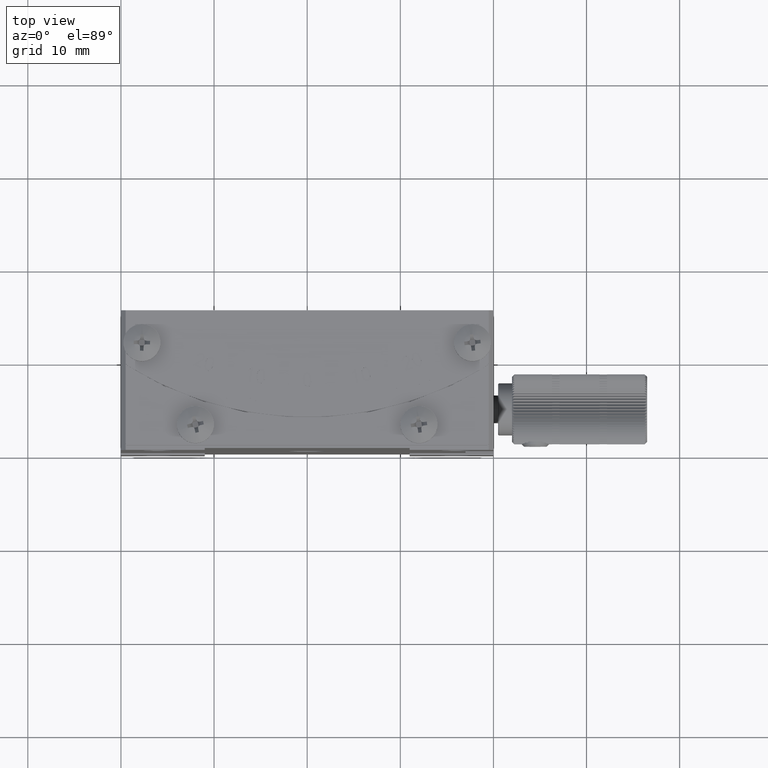
[diagram: clean part render]
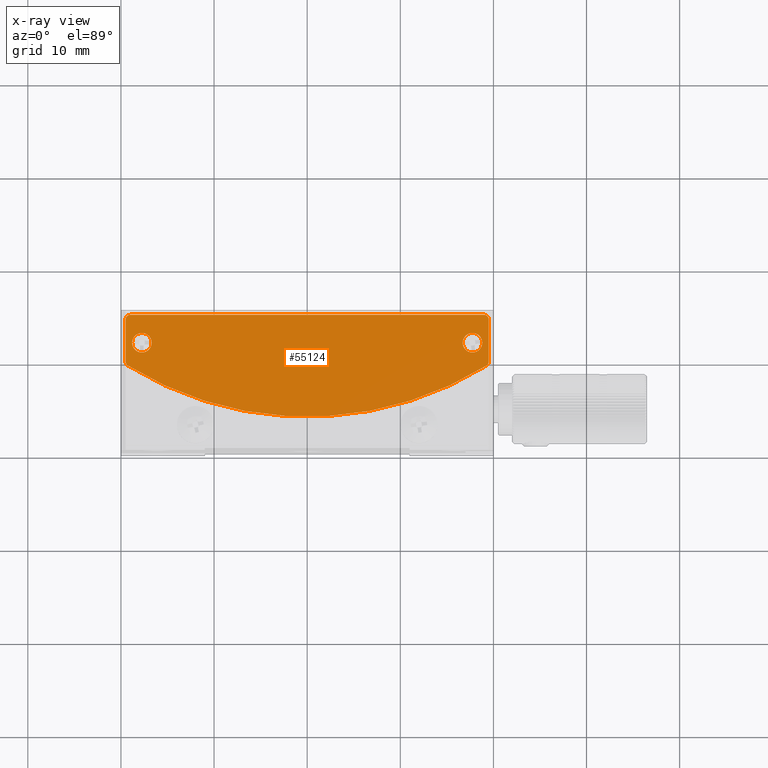
[diagram: x-ray — body ghosted, one internal face saturated and labeled with its STEP entity id]
A machine part, top view, then the same camera in x-ray: the body is ghosted and one INTERNAL B-rep face — a face not visible from any outside direction — is saturated and labeled: STEP entity #55124.
In plain terms, the highlighted planar face has unit normal (0, -0, -1).
Its self-contained STEP definition (entity closure, byte-faithful):
#508 = DIRECTION ( 'NONE',  ( 7.800933276890223951E-31, -1.166664048593739633E-31, -1.000000000000000000 ) ) ;
#827 = FACE_BOUND ( 'NONE', #16114, .T. ) ;
#1281 = AXIS2_PLACEMENT_3D ( 'NONE', #15134, #25095, #59266 ) ;
#1362 = CARTESIAN_POINT ( 'NONE',  ( 1.040834085586084257E-14, -25.49999999999999289, 20.00000000000000000 ) ) ;
#1593 = AXIS2_PLACEMENT_3D ( 'NONE', #32761, #52434, #33077 ) ;
#1659 = DIRECTION ( 'NONE',  ( 1.000000000000000000, 0.000000000000000000, 0.000000000000000000 ) ) ;
#2702 = CARTESIAN_POINT ( 'NONE',  ( -19.00000000000000355, -25.99999999999998934, 20.00000000000000000 ) ) ;
#3348 = EDGE_CURVE ( 'NONE', #45258, #21559, #45495, .T. ) ;
#4058 = EDGE_CURVE ( 'NONE', #10067, #29170, #56903, .T. ) ;
#5767 = CARTESIAN_POINT ( 'NONE',  ( -16.70000000000000995, -28.49999999999998579, 20.00000000000000000 ) ) ;
#6278 = FACE_BOUND ( 'NONE', #48255, .T. ) ;
#6573 = DIRECTION ( 'NONE',  ( 1.000000000000000000, 0.000000000000000000, 0.000000000000000000 ) ) ;
#6630 = DIRECTION ( 'NONE',  ( -9.101068399626377525E-62, -1.000000000000000000, 1.166664048593739633E-31 ) ) ;
#7258 = CARTESIAN_POINT ( 'NONE',  ( 19.50000000000000355, 0.05449724108302911318, 20.00000000000000000 ) ) ;
#7620 = CARTESIAN_POINT ( 'NONE',  ( -19.50000000000000355, -30.52327246175827824, 20.00000000000000000 ) ) ;
#7759 = DIRECTION ( 'NONE',  ( -7.800933276890225703E-31, 1.166664048593739633E-31, 1.000000000000000000 ) ) ;
#8385 = ORIENTED_EDGE ( 'NONE', *, *, #61460, .T. ) ;
#9034 = CIRCLE ( 'NONE', #51232, 0.5000000000000004441 ) ;
#10067 = VERTEX_POINT ( 'NONE', #53243 ) ;
#11588 = VERTEX_POINT ( 'NONE', #5767 ) ;
#11655 = EDGE_CURVE ( 'NONE', #11588, #11588, #25293, .T. ) ;
#11659 = CARTESIAN_POINT ( 'NONE',  ( -17.75000000000000711, -28.49999999999998579, 20.00000000000000000 ) ) ;
#12495 = EDGE_CURVE ( 'NONE', #14743, #58590, #60504, .T. ) ;
#13071 = VERTEX_POINT ( 'NONE', #38985 ) ;
#13923 = EDGE_CURVE ( 'NONE', #58590, #24582, #39114, .T. ) ;
#13997 = DIRECTION ( 'NONE',  ( 7.800933276890225703E-31, -1.166664048593739633E-31, -1.000000000000000000 ) ) ;
#14661 = CARTESIAN_POINT ( 'NONE',  ( -19.50000000000000355, 0.05449724108302911318, 20.00000000000000000 ) ) ;
#14743 = VERTEX_POINT ( 'NONE', #37701 ) ;
#15134 = CARTESIAN_POINT ( 'NONE',  ( 1.040834085586084257E-14, 0.05449724108302911318, 20.00000000000000000 ) ) ;
#16114 = EDGE_LOOP ( 'NONE', ( #63535 ) ) ;
#16748 = CARTESIAN_POINT ( 'NONE',  ( 19.00000000000000355, -25.50000000000000355, 20.00000000000000000 ) ) ;
#16914 = CARTESIAN_POINT ( 'NONE',  ( 19.00000000000000355, -26.00000000000001421, 20.00000000000000000 ) ) ;
#17403 = VECTOR ( 'NONE', #43310, 1000.000000000000000 ) ;
#18471 = CIRCLE ( 'NONE', #62716, 0.5000000000000004441 ) ;
#19120 = AXIS2_PLACEMENT_3D ( 'NONE', #20177, #508, #25956 ) ;
#20177 = CARTESIAN_POINT ( 'NONE',  ( 1.040834085586084257E-14, 0.05449724108302911318, 20.00000000000000000 ) ) ;
#20492 = FACE_OUTER_BOUND ( 'NONE', #20502, .T. ) ;
#20502 = EDGE_LOOP ( 'NONE', ( #34863, #27424, #47683, #55969, #27983, #47655, #49769, #8385 ) ) ;
#20812 = PLANE ( 'NONE',  #19120 ) ;
#21157 = CIRCLE ( 'NONE', #1593, 1.049999999999998934 ) ;
#21559 = VERTEX_POINT ( 'NONE', #16748 ) ;
#23754 = VECTOR ( 'NONE', #6630, 1000.000000000000000 ) ;
#23889 = DIRECTION ( 'NONE',  ( 1.000000000000000000, -0.000000000000000000, 7.800933276890223951E-31 ) ) ;
#24582 = VERTEX_POINT ( 'NONE', #45878 ) ;
#25095 = DIRECTION ( 'NONE',  ( 7.800933276890225703E-31, -1.166664048593739633E-31, -1.000000000000000000 ) ) ;
#25293 = CIRCLE ( 'NONE', #41770, 1.049999999999995381 ) ;
#25362 = CARTESIAN_POINT ( 'NONE',  ( 18.80000000000000071, -28.50000000000000711, 20.00000000000000000 ) ) ;
#25956 = DIRECTION ( 'NONE',  ( -1.000000000000000000, 0.000000000000000000, -7.800933276890223951E-31 ) ) ;
#27191 = CIRCLE ( 'NONE', #52896, 0.5000000000000004441 ) ;
#27424 = ORIENTED_EDGE ( 'NONE', *, *, #41004, .T. ) ;
#27983 = ORIENTED_EDGE ( 'NONE', *, *, #52140, .T. ) ;
#28165 = CARTESIAN_POINT ( 'NONE',  ( 19.00000000000000000, -30.52327246175829600, 20.00000000000000000 ) ) ;
#29170 = VERTEX_POINT ( 'NONE', #46488 ) ;
#29891 = VERTEX_POINT ( 'NONE', #25362 ) ;
#31921 = VECTOR ( 'NONE', #23889, 1000.000000000000000 ) ;
#32761 = CARTESIAN_POINT ( 'NONE',  ( 17.75000000000000355, -28.50000000000000711, 20.00000000000000000 ) ) ;
#33077 = DIRECTION ( 'NONE',  ( 1.000000000000000000, 0.000000000000000000, 0.000000000000000000 ) ) ;
#34863 = ORIENTED_EDGE ( 'NONE', *, *, #3348, .T. ) ;
#36288 = DIRECTION ( 'NONE',  ( 1.000000000000000000, 0.000000000000000000, 0.000000000000000000 ) ) ;
#37701 = CARTESIAN_POINT ( 'NONE',  ( -19.26388888888889284, -30.94796370763107518, 20.00000000000000000 ) ) ;
#38985 = CARTESIAN_POINT ( 'NONE',  ( 19.26388888888889284, -30.94796370763108939, 20.00000000000000000 ) ) ;
#39114 = LINE ( 'NONE', #14661, #17403 ) ;
#40923 = AXIS2_PLACEMENT_3D ( 'NONE', #50818, #60183, #36288 ) ;
#41004 = EDGE_CURVE ( 'NONE', #21559, #10067, #27191, .T. ) ;
#41770 = AXIS2_PLACEMENT_3D ( 'NONE', #11659, #7759, #1659 ) ;
#42008 = DIRECTION ( 'NONE',  ( 7.800933276890225703E-31, -1.166664048593739633E-31, -1.000000000000000000 ) ) ;
#43310 = DIRECTION ( 'NONE',  ( 9.101068399626377525E-62, 1.000000000000000000, -1.166664048593739633E-31 ) ) ;
#45258 = VERTEX_POINT ( 'NONE', #60313 ) ;
#45495 = LINE ( 'NONE', #1362, #31921 ) ;
#45878 = CARTESIAN_POINT ( 'NONE',  ( -19.50000000000000355, -25.99999999999998934, 20.00000000000000000 ) ) ;
#46488 = CARTESIAN_POINT ( 'NONE',  ( 19.50000000000000355, -30.52327246175829600, 20.00000000000000000 ) ) ;
#47655 = ORIENTED_EDGE ( 'NONE', *, *, #12495, .T. ) ;
#47683 = ORIENTED_EDGE ( 'NONE', *, *, #4058, .T. ) ;
#48255 = EDGE_LOOP ( 'NONE', ( #54293 ) ) ;
#49769 = ORIENTED_EDGE ( 'NONE', *, *, #13923, .T. ) ;
#50818 = CARTESIAN_POINT ( 'NONE',  ( -19.00000000000000355, -30.52327246175827824, 20.00000000000000000 ) ) ;
#51232 = AXIS2_PLACEMENT_3D ( 'NONE', #28165, #13997, #53607 ) ;
#51374 = DIRECTION ( 'NONE',  ( 1.000000000000000000, 0.000000000000000000, 0.000000000000000000 ) ) ;
#52140 = EDGE_CURVE ( 'NONE', #13071, #14743, #55842, .T. ) ;
#52434 = DIRECTION ( 'NONE',  ( -7.800933276890225703E-31, 1.166664048593739633E-31, 1.000000000000000000 ) ) ;
#52896 = AXIS2_PLACEMENT_3D ( 'NONE', #16914, #56845, #51374 ) ;
#53243 = CARTESIAN_POINT ( 'NONE',  ( 19.50000000000000355, -26.00000000000001421, 20.00000000000000000 ) ) ;
#53607 = DIRECTION ( 'NONE',  ( 1.000000000000000000, 0.000000000000000000, 0.000000000000000000 ) ) ;
#54293 = ORIENTED_EDGE ( 'NONE', *, *, #54960, .T. ) ;
#54960 = EDGE_CURVE ( 'NONE', #29891, #29891, #21157, .T. ) ;
#55124 = ADVANCED_FACE ( 'NONE', ( #6278, #20492, #827 ), #20812, .T. ) ;
#55842 = CIRCLE ( 'NONE', #1281, 36.50000000000000711 ) ;
#55969 = ORIENTED_EDGE ( 'NONE', *, *, #58904, .T. ) ;
#56845 = DIRECTION ( 'NONE',  ( 7.800933276890225703E-31, -1.166664048593739633E-31, -1.000000000000000000 ) ) ;
#56903 = LINE ( 'NONE', #7258, #23754 ) ;
#58590 = VERTEX_POINT ( 'NONE', #7620 ) ;
#58904 = EDGE_CURVE ( 'NONE', #29170, #13071, #9034, .T. ) ;
#59266 = DIRECTION ( 'NONE',  ( 1.000000000000000000, 0.000000000000000000, 0.000000000000000000 ) ) ;
#60183 = DIRECTION ( 'NONE',  ( 7.800933276890225703E-31, -1.166664048593739633E-31, -1.000000000000000000 ) ) ;
#60313 = CARTESIAN_POINT ( 'NONE',  ( -19.00000000000000355, -25.49999999999999289, 20.00000000000000000 ) ) ;
#60504 = CIRCLE ( 'NONE', #40923, 0.5000000000000004441 ) ;
#61460 = EDGE_CURVE ( 'NONE', #24582, #45258, #18471, .T. ) ;
#62716 = AXIS2_PLACEMENT_3D ( 'NONE', #2702, #42008, #6573 ) ;
#63535 = ORIENTED_EDGE ( 'NONE', *, *, #11655, .T. ) ;